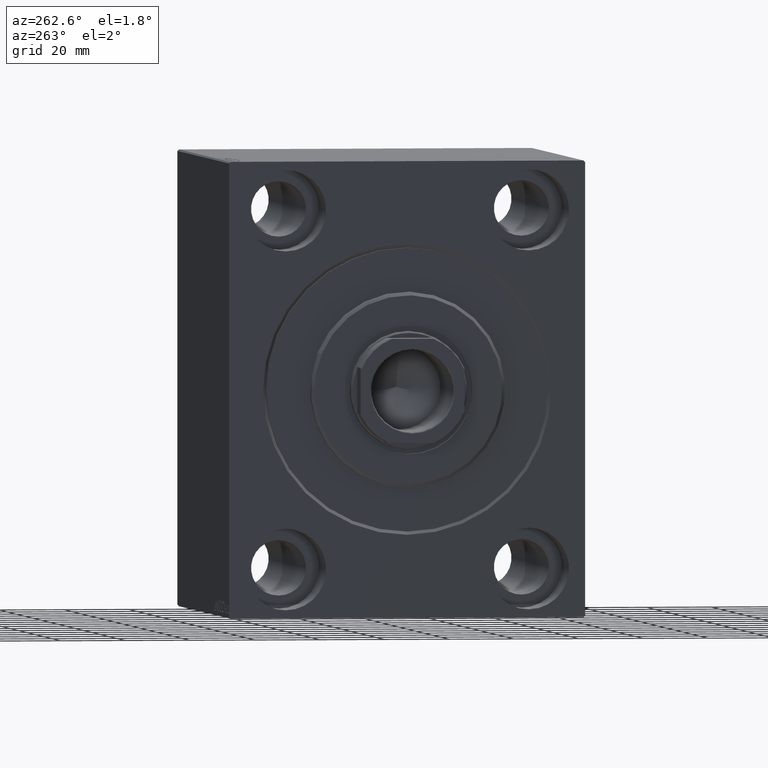
[diagram: clean part render]
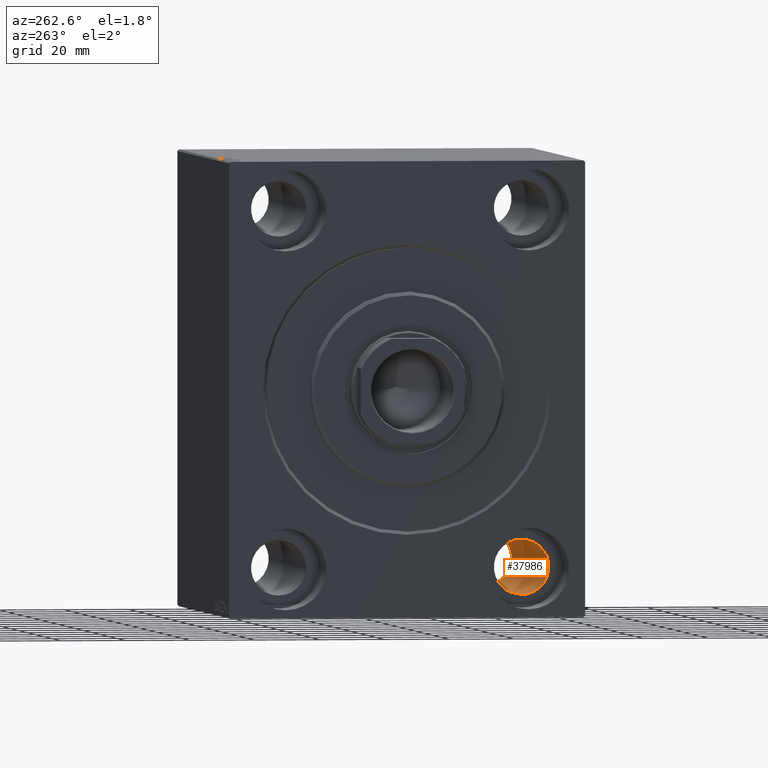
[diagram: same view with one face highlighted and labeled with its STEP entity id]
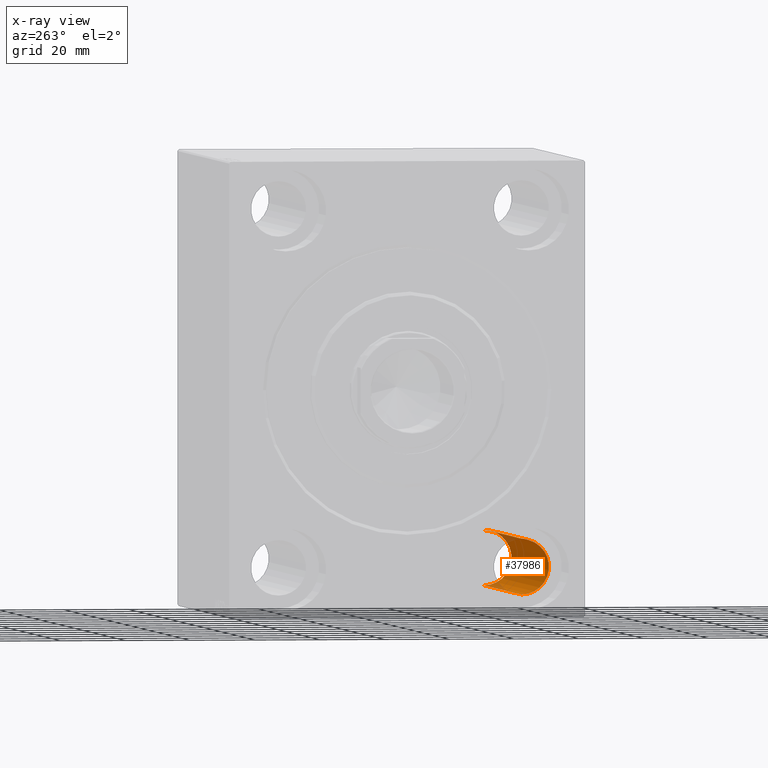
[diagram: x-ray of the same camera — body ghosted, the highlighted face saturated]
A machine part, auxiliary view. The second image highlights one B-rep face of the part: STEP entity #37986.
The next image is the same camera in x-ray: the body ghosted, the highlighted face saturated — about 8% of this face is hidden behind the body in this view.
In plain terms, the highlighted cylindrical surface (edge-blend (fillet) strip) has radius 8.5 mm, axis along (-1, -0, -0).
Its self-contained STEP definition (entity closure, byte-faithful):
#637 = ORIENTED_EDGE ( 'NONE', *, *, #42207, .T. ) ;
#1422 = CIRCLE ( 'NONE', #42653, 8.499999999999992895 ) ;
#1899 = AXIS2_PLACEMENT_3D ( 'NONE', #32099, #31448, #24999 ) ;
#2124 = AXIS2_PLACEMENT_3D ( 'NONE', #43846, #3524, #16257 ) ;
#3524 = DIRECTION ( 'NONE',  ( -1.000000000000000000, -0.000000000000000000, -0.000000000000000000 ) ) ;
#3797 = DIRECTION ( 'NONE',  ( -1.000000000000000000, -0.000000000000000000, -0.000000000000000000 ) ) ;
#4406 = VERTEX_POINT ( 'NONE', #31580 ) ;
#5725 = EDGE_CURVE ( 'NONE', #16812, #4406, #8986, .T. ) ;
#6626 = ORIENTED_EDGE ( 'NONE', *, *, #36134, .T. ) ;
#7598 = CARTESIAN_POINT ( 'NONE',  ( 17.00000000000000000, -37.50000000000002132, -63.49999999999998579 ) ) ;
#8986 = LINE ( 'NONE', #36143, #27035 ) ;
#9119 = CARTESIAN_POINT ( 'NONE',  ( 106.0000000000000000, -37.50000000000002132, -54.99999999999999289 ) ) ;
#9656 = DIRECTION ( 'NONE',  ( -1.000000000000000000, -0.000000000000000000, -0.000000000000000000 ) ) ;
#12897 = ORIENTED_EDGE ( 'NONE', *, *, #5725, .F. ) ;
#13018 = CARTESIAN_POINT ( 'NONE',  ( 106.0000000000000000, -37.50000000000002132, -63.49999999999998579 ) ) ;
#13539 = VECTOR ( 'NONE', #3797, 1000.000000000000000 ) ;
#13845 = LINE ( 'NONE', #27417, #13539 ) ;
#16257 = DIRECTION ( 'NONE',  ( 0.000000000000000000, 0.000000000000000000, 1.000000000000000000 ) ) ;
#16812 = VERTEX_POINT ( 'NONE', #37129 ) ;
#19609 = VERTEX_POINT ( 'NONE', #7598 ) ;
#21571 = EDGE_LOOP ( 'NONE', ( #28255, #637, #6626, #12897 ) ) ;
#22725 = DIRECTION ( 'NONE',  ( -1.000000000000000000, -0.000000000000000000, -0.000000000000000000 ) ) ;
#24999 = DIRECTION ( 'NONE',  ( 0.000000000000000000, 0.000000000000000000, 1.000000000000000000 ) ) ;
#26270 = FACE_OUTER_BOUND ( 'NONE', #21571, .T. ) ;
#27035 = VECTOR ( 'NONE', #9656, 1000.000000000000000 ) ;
#27417 = CARTESIAN_POINT ( 'NONE',  ( 123.0000000000000000, -37.50000000000002132, -63.49999999999998579 ) ) ;
#28255 = ORIENTED_EDGE ( 'NONE', *, *, #38699, .F. ) ;
#31448 = DIRECTION ( 'NONE',  ( -1.000000000000000000, 0.000000000000000000, 0.000000000000000000 ) ) ;
#31580 = CARTESIAN_POINT ( 'NONE',  ( 17.00000000000000000, -37.50000000000002132, -46.50000000000000000 ) ) ;
#31792 = CIRCLE ( 'NONE', #1899, 8.499999999999992895 ) ;
#32099 = CARTESIAN_POINT ( 'NONE',  ( 17.00000000000000000, -37.50000000000002132, -54.99999999999999289 ) ) ;
#35059 = VERTEX_POINT ( 'NONE', #13018 ) ;
#36134 = EDGE_CURVE ( 'NONE', #19609, #4406, #31792, .T. ) ;
#36143 = CARTESIAN_POINT ( 'NONE',  ( 123.0000000000000000, -37.50000000000002132, -46.50000000000000000 ) ) ;
#36274 = DIRECTION ( 'NONE',  ( 0.000000000000000000, 0.000000000000000000, -1.000000000000000000 ) ) ;
#37129 = CARTESIAN_POINT ( 'NONE',  ( 106.0000000000000000, -37.50000000000002132, -46.50000000000000000 ) ) ;
#37986 = ADVANCED_FACE ( 'NONE', ( #26270 ), #40724, .F. ) ;
#38699 = EDGE_CURVE ( 'NONE', #35059, #16812, #1422, .T. ) ;
#40724 = CYLINDRICAL_SURFACE ( 'NONE', #2124, 8.499999999999992895 ) ;
#42207 = EDGE_CURVE ( 'NONE', #35059, #19609, #13845, .T. ) ;
#42653 = AXIS2_PLACEMENT_3D ( 'NONE', #9119, #22725, #36274 ) ;
#43846 = CARTESIAN_POINT ( 'NONE',  ( 123.0000000000000000, -37.50000000000002132, -54.99999999999999289 ) ) ;